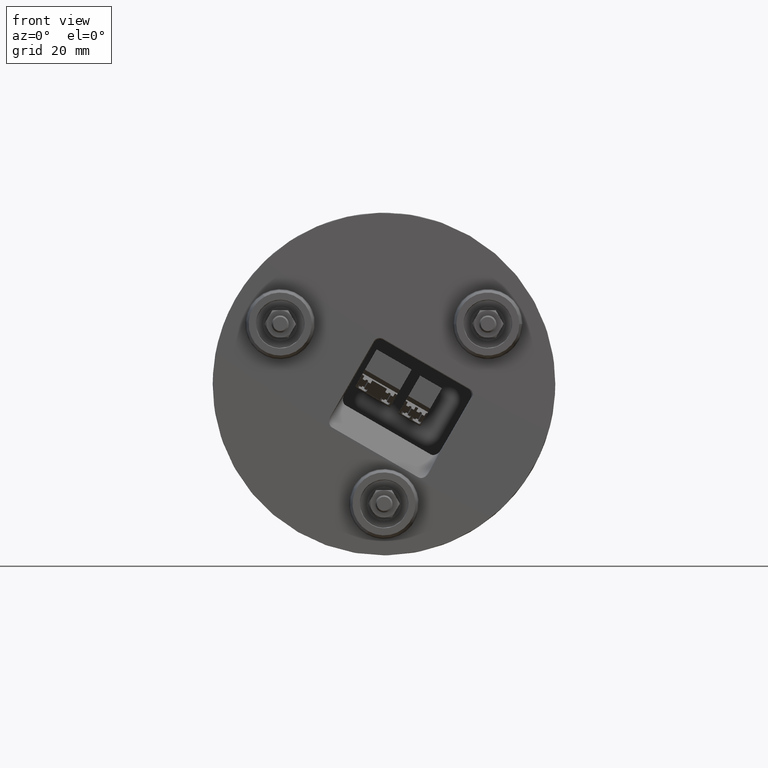
[diagram: clean part render]
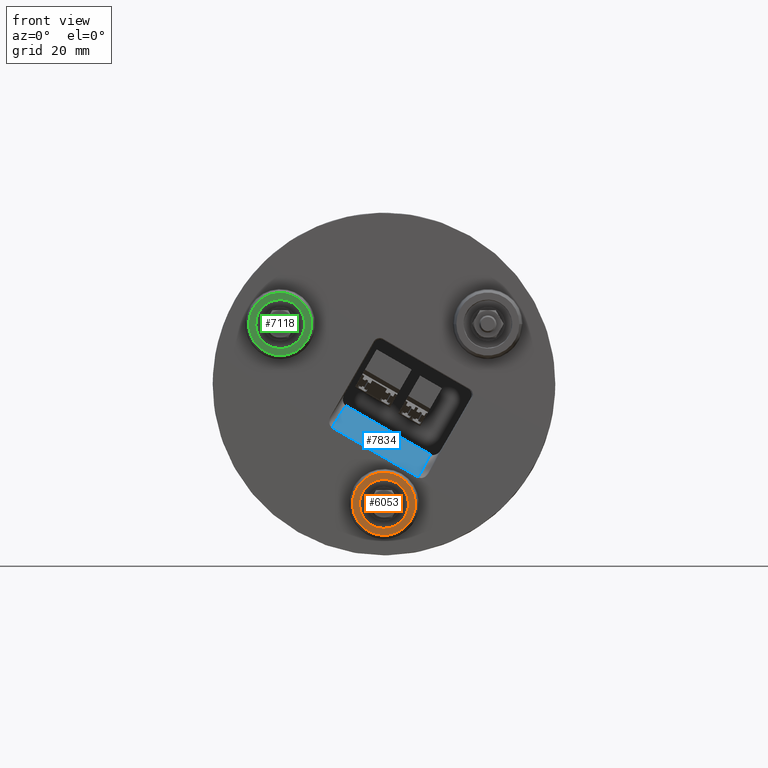
[diagram: same view with three faces highlighted in distinct colors, each labeled with its STEP entity id]
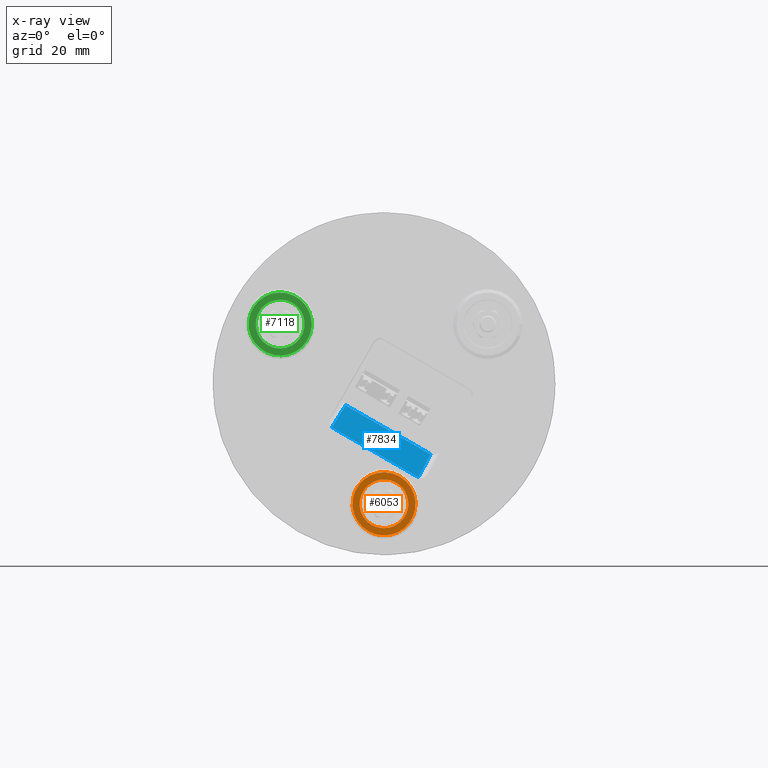
[diagram: x-ray of the same camera — body ghosted, the three highlighted faces saturated]
A machine part, front view with three faces highlighted in distinct colors.
The next image is the same camera in x-ray (body ghosted, the three faces saturated) — at least one of them is partly hidden behind the body in this view.
Their STEP definitions:

[orange] entity #6053 — the highlighted planar face has unit normal (0, -1, 0).
#31 = CARTESIAN_POINT ( 'NONE',  ( -1.117252453711050443E-08, -4.999999999723985233, -34.99999999960564878 ) ) ;
#152 = DIRECTION ( 'NONE',  ( -1.028532641873692008E-16, 1.000000000000000000, -1.192066669675551784E-16 ) ) ;
#545 = AXIS2_PLACEMENT_3D ( 'NONE', #8128, #6138, #4805 ) ;
#772 = CARTESIAN_POINT ( 'NONE',  ( -3.569841552181681088, -4.999999999723987010, -41.18314691895240287 ) ) ;
#1030 = CARTESIAN_POINT ( 'NONE',  ( 4.600007604154810359, -5.000000000005420553, -27.03255310048794868 ) ) ;
#1289 = CARTESIAN_POINT ( 'NONE',  ( 3.569841529836633054, -4.999999999723984345, -28.81685308025890180 ) ) ;
#1509 = EDGE_CURVE ( 'NONE', #7138, #6978, #3928, .T. ) ;
#1517 = VERTEX_POINT ( 'NONE', #5505 ) ;
#1616 = EDGE_LOOP ( 'NONE', ( #6389, #8554 ) ) ;
#1956 = AXIS2_PLACEMENT_3D ( 'NONE', #31, #152, #4842 ) ;
#2018 = EDGE_CURVE ( 'NONE', #1517, #7162, #4357, .T. ) ;
#2859 = DIRECTION ( 'NONE',  ( 1.776356839353380491E-15, 9.427829375483883547E-17, 1.000000000000000000 ) ) ;
#2934 = EDGE_LOOP ( 'NONE', ( #5858, #7918 ) ) ;
#2989 = CARTESIAN_POINT ( 'NONE',  ( -1.117252473201025939E-08, -5.000000000005420553, -34.99999999960564878 ) ) ;
#3139 = FACE_BOUND ( 'NONE', #2934, .T. ) ;
#3548 = CARTESIAN_POINT ( 'NONE',  ( -1.117252453711050443E-08, -4.999999999723985233, -34.99999999960564878 ) ) ;
#3894 = PLANE ( 'NONE',  #4143 ) ;
#3928 = CIRCLE ( 'NONE', #1956, 7.139683077990357951 ) ;
#3939 = DIRECTION ( 'NONE',  ( -1.000000000000000000, -1.017949417784775889E-16, 0.000000000000000000 ) ) ;
#4143 = AXIS2_PLACEMENT_3D ( 'NONE', #7163, #7827, #3939 ) ;
#4357 = CIRCLE ( 'NONE', #545, 9.200015225603149105 ) ;
#4395 = DIRECTION ( 'NONE',  ( -1.028532641873692008E-16, 1.000000000000000000, -1.192066669675551784E-16 ) ) ;
#4546 = CIRCLE ( 'NONE', #6103, 7.139683077990357951 ) ;
#4805 = DIRECTION ( 'NONE',  ( 0.000000000000000000, 9.427829375483883547E-17, 1.000000000000000000 ) ) ;
#4842 = DIRECTION ( 'NONE',  ( 0.000000000000000000, -1.214846273306215391E-16, -1.000000000000000000 ) ) ;
#5086 = EDGE_CURVE ( 'NONE', #6978, #7138, #4546, .T. ) ;
#5505 = CARTESIAN_POINT ( 'NONE',  ( -4.600007626499869495, -5.000000000005420553, -42.96744689872335243 ) ) ;
#5528 = CIRCLE ( 'NONE', #6374, 9.200015225603149105 ) ;
#5650 = DIRECTION ( 'NONE',  ( 1.017949417541607912E-16, -1.000000000000000000, 9.427829375483858896E-17 ) ) ;
#5797 = FACE_OUTER_BOUND ( 'NONE', #1616, .T. ) ;
#5858 = ORIENTED_EDGE ( 'NONE', *, *, #5086, .T. ) ;
#6053 = ADVANCED_FACE ( 'NONE', ( #3139, #5797 ), #3894, .T. ) ;
#6103 = AXIS2_PLACEMENT_3D ( 'NONE', #3548, #4395, #6924 ) ;
#6138 = DIRECTION ( 'NONE',  ( 1.017949417541607912E-16, -1.000000000000000000, 9.427829375483878617E-17 ) ) ;
#6374 = AXIS2_PLACEMENT_3D ( 'NONE', #2989, #5650, #2859 ) ;
#6389 = ORIENTED_EDGE ( 'NONE', *, *, #7649, .T. ) ;
#6924 = DIRECTION ( 'NONE',  ( 0.000000000000000000, -1.214846273306215391E-16, -1.000000000000000000 ) ) ;
#6978 = VERTEX_POINT ( 'NONE', #772 ) ;
#7138 = VERTEX_POINT ( 'NONE', #1289 ) ;
#7162 = VERTEX_POINT ( 'NONE', #1030 ) ;
#7163 = CARTESIAN_POINT ( 'NONE',  ( -9.105924555684609053E-09, -5.000000000000000000, -27.86031692205415311 ) ) ;
#7649 = EDGE_CURVE ( 'NONE', #7162, #1517, #5528, .T. ) ;
#7827 = DIRECTION ( 'NONE',  ( 1.017949417784775889E-16, -1.000000000000000000, 1.173735987859451769E-16 ) ) ;
#7918 = ORIENTED_EDGE ( 'NONE', *, *, #1509, .T. ) ;
#8128 = CARTESIAN_POINT ( 'NONE',  ( -1.117252473201025939E-08, -5.000000000005420553, -34.99999999960564878 ) ) ;
#8554 = ORIENTED_EDGE ( 'NONE', *, *, #2018, .T. ) ;

[blue] entity #7834 — the highlighted planar face has unit normal (0.3672, -0.6786, 0.6361).
#394 = ORIENTED_EDGE ( 'NONE', *, *, #7347, .T. ) ;
#1040 = EDGE_LOOP ( 'NONE', ( #2215, #4875, #4296, #394 ) ) ;
#1494 = VERTEX_POINT ( 'NONE', #4179 ) ;
#1533 = VECTOR ( 'NONE', #4773, 1000.000000000000227 ) ;
#1575 = CARTESIAN_POINT ( 'NONE',  ( -11.16915704096282091, 11.19999999999999929, -6.253190095488600164 ) ) ;
#1580 = CARTESIAN_POINT ( 'NONE',  ( 10.05212458675350007, 3.000000000000000000, -27.25426747419535189 ) ) ;
#1808 = CARTESIAN_POINT ( 'NONE',  ( 13.57667021896279991, 11.16321892272083893, -20.57944359303465021 ) ) ;
#1925 = CARTESIAN_POINT ( 'NONE',  ( 33.14683192544805479, 3.000000000000000000, -40.58800298307615151 ) ) ;
#2170 = VERTEX_POINT ( 'NONE', #1575 ) ;
#2201 = CARTESIAN_POINT ( 'NONE',  ( 17.08319349331310022, 11.19999999999999929, -22.56469229396225273 ) ) ;
#2215 = ORIENTED_EDGE ( 'NONE', *, *, #8707, .T. ) ;
#2464 = CARTESIAN_POINT ( 'NONE',  ( -15.22366179338230019, 2.963218922720840087, -12.70052884962843898 ) ) ;
#2548 = CARTESIAN_POINT ( 'NONE',  ( 13.59255079089150087, 11.19999999999999929, -20.54936878855840021 ) ) ;
#2554 = AXIS2_PLACEMENT_3D ( 'NONE', #4681, #3426, #6137 ) ;
#2566 = VECTOR ( 'NONE', #4447, 1000.000000000000000 ) ;
#3053 = EDGE_CURVE ( 'NONE', #4338, #3336, #7864, .T. ) ;
#3167 = DIRECTION ( 'NONE',  ( -0.3614166759584753752, -0.7342228507122796621, -0.5747127907320837004 ) ) ;
#3292 = LINE ( 'NONE', #1925, #2566 ) ;
#3336 = VERTEX_POINT ( 'NONE', #2548 ) ;
#3426 = DIRECTION ( 'NONE',  ( 0.3672321528683996084, -0.6786473194577760104, 0.6360647464625089897 ) ) ;
#4179 = CARTESIAN_POINT ( 'NONE',  ( -15.20555653463759960, 3.000000000000000000, -12.67173846868521991 ) ) ;
#4296 = ORIENTED_EDGE ( 'NONE', *, *, #3053, .T. ) ;
#4338 = VERTEX_POINT ( 'NONE', #1580 ) ;
#4447 = DIRECTION ( 'NONE',  ( 0.8660254036215786488, 3.823967277254768365E-18, -0.5000000002820818024 ) ) ;
#4681 = CARTESIAN_POINT ( 'NONE',  ( -15.20555653463759960, 3.000000000000000000, -12.67173846868521991 ) ) ;
#4723 = PLANE ( 'NONE',  #2554 ) ;
#4773 = DIRECTION ( 'NONE',  ( 0.3170075390656894587, 0.7342228507122797732, 0.6003524178908988818 ) ) ;
#4875 = ORIENTED_EDGE ( 'NONE', *, *, #4888, .T. ) ;
#4888 = EDGE_CURVE ( 'NONE', #1494, #4338, #3292, .T. ) ;
#5085 = DIRECTION ( 'NONE',  ( -0.8660254036215786488, -2.947020608618103468E-17, 0.5000000002820818024 ) ) ;
#5094 = VECTOR ( 'NONE', #5085, 1000.000000000000000 ) ;
#6008 = FACE_OUTER_BOUND ( 'NONE', #1040, .T. ) ;
#6137 = DIRECTION ( 'NONE',  ( -0.8794918743702622166, -0.4759139028402961102, 0.000000000000000000 ) ) ;
#6281 = LINE ( 'NONE', #2201, #5094 ) ;
#6669 = VECTOR ( 'NONE', #3167, 1000.000000000000000 ) ;
#7115 = LINE ( 'NONE', #2464, #6669 ) ;
#7347 = EDGE_CURVE ( 'NONE', #3336, #2170, #6281, .T. ) ;
#7834 = ADVANCED_FACE ( 'NONE', ( #6008 ), #4723, .T. ) ;
#7864 = LINE ( 'NONE', #1808, #1533 ) ;
#8707 = EDGE_CURVE ( 'NONE', #2170, #1494, #7115, .T. ) ;

[green] entity #7118 — the highlighted planar face has unit normal (0, -1, 0).
#424 = CARTESIAN_POINT ( 'NONE',  ( -30.31088912675524938, -5.000000000000000000, 17.50000000987284920 ) ) ;
#591 = FACE_BOUND ( 'NONE', #7621, .T. ) ;
#658 = CARTESIAN_POINT ( 'NONE',  ( -30.31088912675524938, -5.000000000000000000, 17.50000000987284920 ) ) ;
#1388 = AXIS2_PLACEMENT_3D ( 'NONE', #658, #6173, #6011 ) ;
#1573 = AXIS2_PLACEMENT_3D ( 'NONE', #7331, #3343, #7995 ) ;
#2073 = AXIS2_PLACEMENT_3D ( 'NONE', #7635, #7017, #2356 ) ;
#2116 = CARTESIAN_POINT ( 'NONE',  ( -33.88073066754497376, -5.000000000000006217, 11.31685309090614844 ) ) ;
#2117 = CIRCLE ( 'NONE', #2969, 9.200015226397610490 ) ;
#2127 = ORIENTED_EDGE ( 'NONE', *, *, #5532, .T. ) ;
#2356 = DIRECTION ( 'NONE',  ( 0.000000000000000000, -1.214846273380887486E-16, -1.000000000000000000 ) ) ;
#2514 = VERTEX_POINT ( 'NONE', #5720 ) ;
#2570 = CIRCLE ( 'NONE', #1573, 7.139683077551508106 ) ;
#2614 = DIRECTION ( 'NONE',  ( -1.000000000000000000, -1.017949417784775889E-16, 0.000000000000000000 ) ) ;
#2899 = VERTEX_POINT ( 'NONE', #3002 ) ;
#2969 = AXIS2_PLACEMENT_3D ( 'NONE', #424, #5856, #8552 ) ;
#3002 = CARTESIAN_POINT ( 'NONE',  ( -25.71088151638405250, -5.000000000000000000, 9.532553106976401125 ) ) ;
#3224 = DIRECTION ( 'NONE',  ( 1.017949417784775889E-16, -1.000000000000000000, 1.173735987859451769E-16 ) ) ;
#3343 = DIRECTION ( 'NONE',  ( -1.028532641854105948E-16, 1.000000000000000000, -1.192066669641627807E-16 ) ) ;
#3424 = EDGE_CURVE ( 'NONE', #2514, #2899, #7330, .T. ) ;
#3532 = AXIS2_PLACEMENT_3D ( 'NONE', #5727, #3224, #2614 ) ;
#3550 = ORIENTED_EDGE ( 'NONE', *, *, #8163, .T. ) ;
#4307 = ORIENTED_EDGE ( 'NONE', *, *, #4678, .T. ) ;
#4678 = EDGE_CURVE ( 'NONE', #6463, #6134, #8436, .T. ) ;
#5175 = CARTESIAN_POINT ( 'NONE',  ( -26.74104758596551790, -5.000000000000002665, 23.68314692883954820 ) ) ;
#5532 = EDGE_CURVE ( 'NONE', #6134, #6463, #2570, .T. ) ;
#5720 = CARTESIAN_POINT ( 'NONE',  ( -34.91089673712684771, -5.000000000000000000, 25.46744691276914807 ) ) ;
#5727 = CARTESIAN_POINT ( 'NONE',  ( -24.12774220740014997, -5.000000000000000000, 13.93015846885889886 ) ) ;
#5856 = DIRECTION ( 'NONE',  ( 1.017949417541609884E-16, -1.000000000000000000, 9.427829374669769232E-17 ) ) ;
#6011 = DIRECTION ( 'NONE',  ( 0.000000000000000000, 9.427829374669749511E-17, 1.000000000000000000 ) ) ;
#6134 = VERTEX_POINT ( 'NONE', #2116 ) ;
#6173 = DIRECTION ( 'NONE',  ( 1.017949417541609884E-16, -1.000000000000000000, 9.427829374669748278E-17 ) ) ;
#6463 = VERTEX_POINT ( 'NONE', #5175 ) ;
#6606 = PLANE ( 'NONE',  #3532 ) ;
#6619 = ORIENTED_EDGE ( 'NONE', *, *, #3424, .T. ) ;
#7017 = DIRECTION ( 'NONE',  ( -1.028532641854105948E-16, 1.000000000000000000, -1.192066669641627807E-16 ) ) ;
#7118 = ADVANCED_FACE ( 'NONE', ( #591, #8687 ), #6606, .T. ) ;
#7330 = CIRCLE ( 'NONE', #1388, 9.200015226397610490 ) ;
#7331 = CARTESIAN_POINT ( 'NONE',  ( -30.31088912675524938, -5.000000000000004441, 17.50000000987284920 ) ) ;
#7621 = EDGE_LOOP ( 'NONE', ( #2127, #4307 ) ) ;
#7635 = CARTESIAN_POINT ( 'NONE',  ( -30.31088912675524938, -5.000000000000004441, 17.50000000987284920 ) ) ;
#7995 = DIRECTION ( 'NONE',  ( 0.000000000000000000, -1.214846273380887486E-16, -1.000000000000000000 ) ) ;
#8163 = EDGE_CURVE ( 'NONE', #2899, #2514, #2117, .T. ) ;
#8274 = EDGE_LOOP ( 'NONE', ( #3550, #6619 ) ) ;
#8436 = CIRCLE ( 'NONE', #2073, 7.139683077551508106 ) ;
#8552 = DIRECTION ( 'NONE',  ( -1.885565874933949804E-15, 9.427829374669749511E-17, 1.000000000000000000 ) ) ;
#8687 = FACE_OUTER_BOUND ( 'NONE', #8274, .T. ) ;